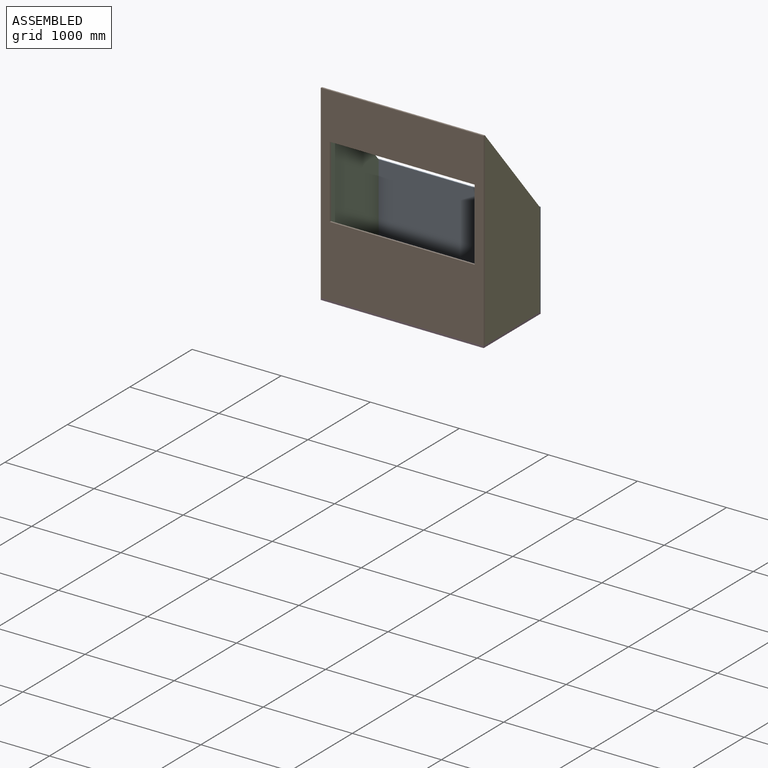
[diagram: assembled view]
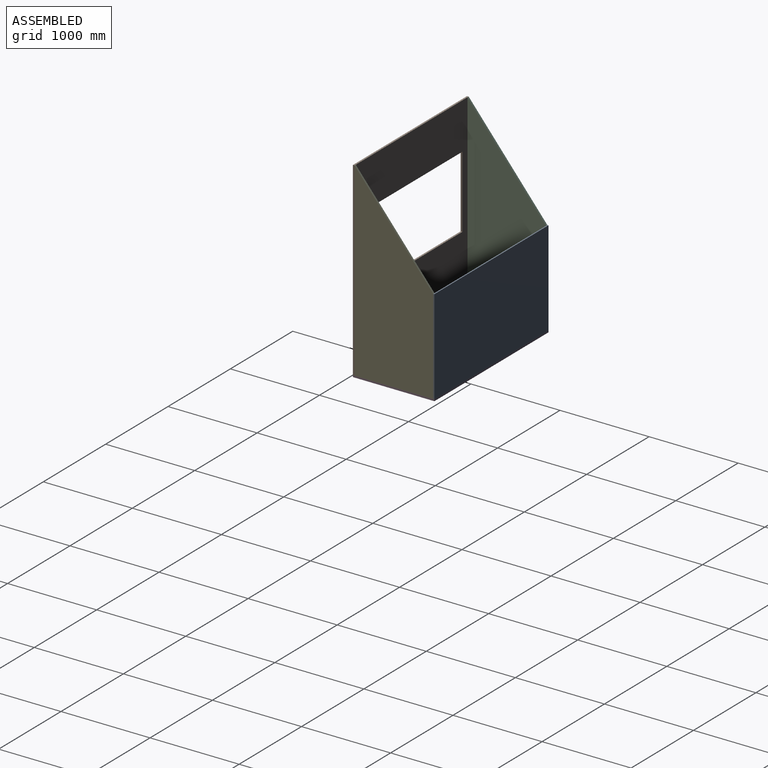
[diagram: assembled view, second angle]
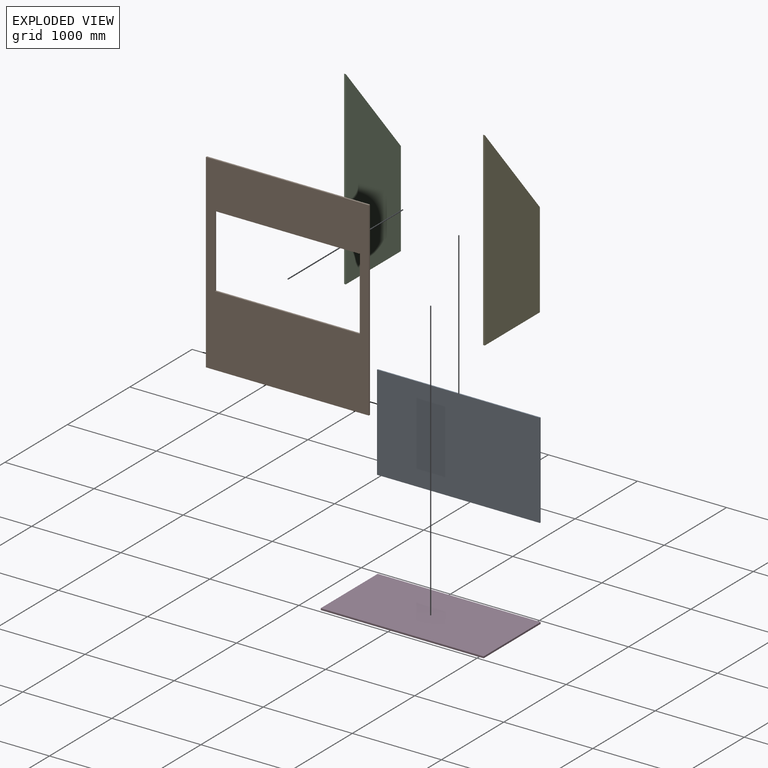
[diagram: exploded view]
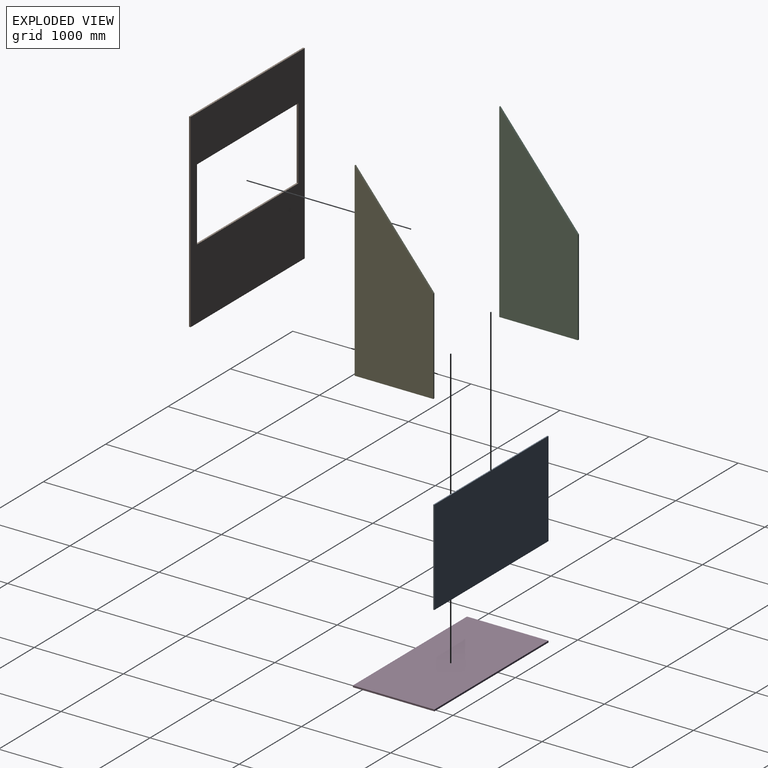
[diagram: exploded view, second angle]
ASSEMBLY  parts=5 mates=4
PART A: 6 faces, bbox 1828.8x12.7x1066.8 mm
  f0: plane 1066.8x12.7mm, normal (-1,0,0), area 13548.4mm2, adj f1,f3,f4,f5
  f1: plane 1828.8x12.7mm, normal (0,0,-1), area 23225.8mm2, adj f0,f2,f4,f5
  f2: plane 1066.8x12.7mm, normal (1,0,0), area 13548.4mm2, adj f1,f3,f4,f5
  f3: plane 1828.8x12.7mm, normal (0,0,1), area 23225.8mm2, adj f0,f2,f4,f5
  f4: plane 1828.8x1066.8mm, normal (0,-1,0), area 1950963.8mm2, adj f0,f1,f2,f3
  f5: plane 1828.8x1066.8mm, normal (0,1,0), area 1950963.8mm2, adj f0,f1,f2,f3
PART B: 10 faces, bbox 1828.8x19.1x2133.6 mm
  f0: plane 1828.8x19.05mm, normal (0,0,-1), area 34838.6mm2, adj f1,f7,f8,f9
  f1: plane 2133.6x19.05mm, normal (1,0,0), area 40645.1mm2, adj f0,f2,f8,f9
  f2: plane 1828.8x19.05mm, normal (0,0,1), area 34838.6mm2, adj f1,f7,f8,f9
  f3: plane 1625.6x19.05mm, normal (0,0,1), area 30967.7mm2, adj f4,f6,f8,f9
  f4: plane 812.8x19.05mm, normal (1,0,0), area 15483.8mm2, adj f3,f5,f8,f9
  f5: plane 1625.6x19.05mm, normal (0,0,-1), area 30967.7mm2, adj f4,f6,f8,f9
  f6: plane 812.8x19.05mm, normal (-1,0,0), area 15483.8mm2, adj f3,f5,f8,f9
  f7: plane 2133.6x19.05mm, normal (-1,0,0), area 40645.1mm2, adj f0,f2,f8,f9
  f8: plane 2133.6x1828.8mm, normal (0,-1,0), area 2580640mm2, adj f0,f1,f2,f3,f4,f5,f6,f7
  f9: plane 2133.6x1828.8mm, normal (0,1,0), area 2580640mm2, adj f0,f1,f2,f3,f4,f5,f6,f7
PART C: 6 faces, bbox 19.1x882.7x2133.6 mm
  f0: plane 2133.6x19.05mm, normal (0,-1,0), area 40645.1mm2, adj f1,f3,f4,f5
  f1: plane 882.65x19.05mm, normal (0,0,-1), area 16814.5mm2, adj f0,f2,f4,f5
  f2: plane 1066.8x19.05mm, normal (0,1,0), area 20322.5mm2, adj f1,f3,f4,f5
  f3: plane 1066.8x882.65mm, normal (0,0.77,0.64), area 26376.7mm2, adj f0,f2,f4,f5
  f4: plane 2133.6x882.65mm, normal (1,0,0), area 1412416.5mm2, adj f0,f1,f2,f3
  f5: plane 2133.6x882.65mm, normal (-1,0,0), area 1412416.5mm2, adj f0,f1,f2,f3
PART D: 6 faces, bbox 914.4x1828.8x19.1 mm
  f0: plane 1828.8x19.05mm, normal (-1,0,0), area 34838.6mm2, adj f1,f3,f4,f5
  f1: plane 914.4x19.05mm, normal (0,-1,0), area 17419.3mm2, adj f0,f2,f4,f5
  f2: plane 1828.8x19.05mm, normal (1,0,0), area 34838.6mm2, adj f1,f3,f4,f5
  f3: plane 914.4x19.05mm, normal (0,1,0), area 17419.3mm2, adj f0,f2,f4,f5
  f4: plane 1828.8x914.4mm, normal (0,0,1), area 1672254.7mm2, adj f0,f1,f2,f3
  f5: plane 1828.8x914.4mm, normal (0,0,-1), area 1672254.7mm2, adj f0,f1,f2,f3
PART E: same geometry as C
PLACE A rot(axis=(0,0,1),0deg) t=(-1721.65,-133.25,-51.91)mm
PLACE B t=(-1721.65,-1028.6,-51.91)mm
PLACE C t=(-1721.65,-1028.6,-51.91)mm
PLACE D rot(axis=(0,0,-1),90deg) t=(-1721.65,-133.25,-70.96)mm
PLACE E t=(88.1,-1028.6,-51.91)mm
MATE fastened C.f0 <-> B.f9  axis (0,-1,0) through (-1721.65,-1028.6,-51.91)mm
MATE fastened E.f0 <-> B.f9  axis (0,-1,0) through (107.15,-1028.6,-51.91)mm
MATE fastened D.f4 <-> B.f0  axis (0,0,1) through (-1721.65,-1047.65,-51.91)mm
MATE fastened A.f1 <-> D.f4  axis (0,0,-1) through (107.15,-133.25,-51.91)mm
